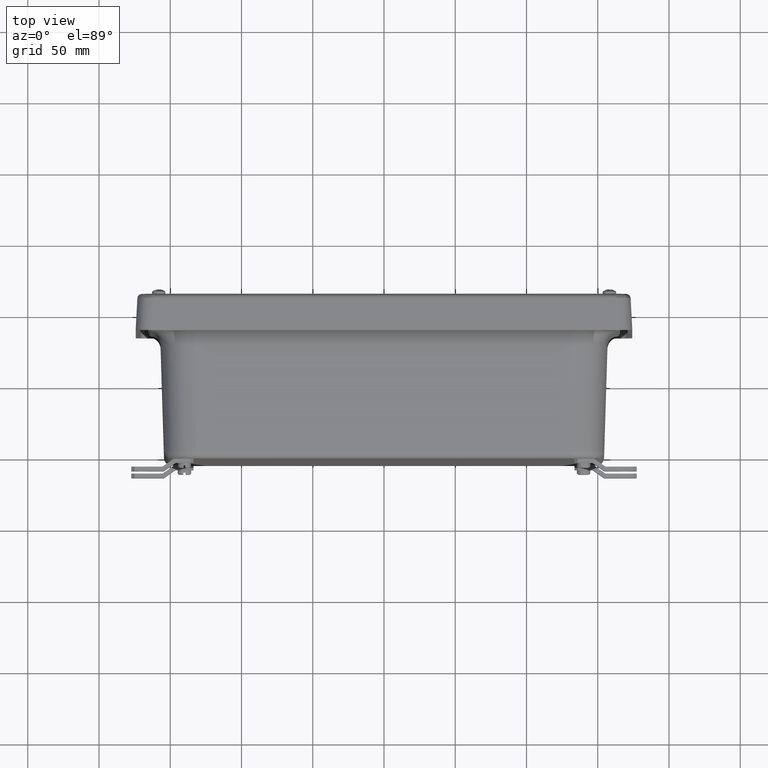
[diagram: clean part render]
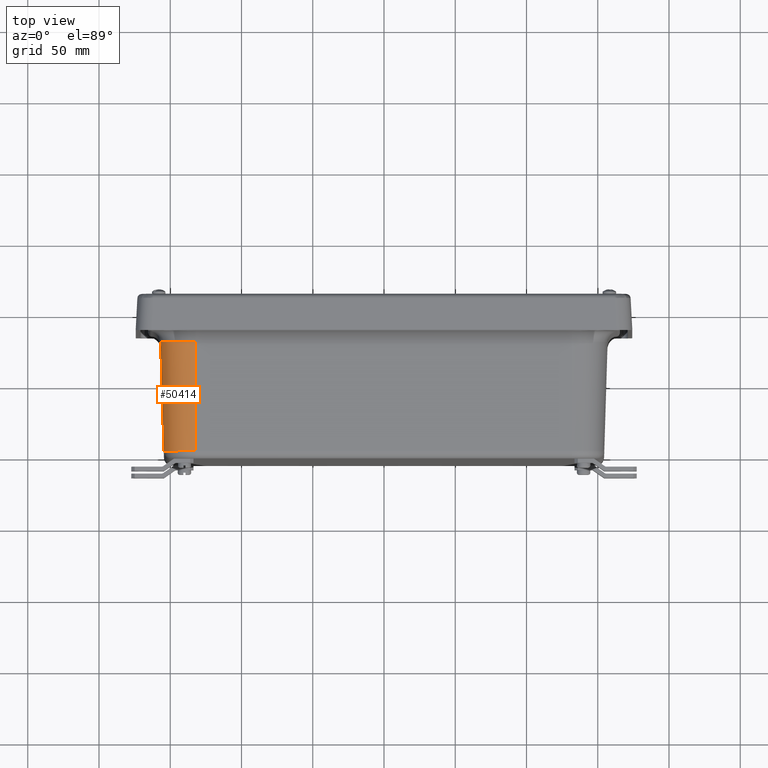
[diagram: same view with one face highlighted and labeled with its STEP entity id]
A machine part, top view. The second image highlights one B-rep face of the part: STEP entity #50414.
In plain terms, the highlighted conical surface has half-angle 1.75 deg.
Its self-contained STEP definition (entity closure, byte-faithful):
#1798 = CARTESIAN_POINT ( 'NONE',  ( -5.198999999999999800, -3.912687934392951900, 5.198999999999999800 ) ) ;
#2619 = CARTESIAN_POINT ( 'NONE',  ( -5.198999999999999800, -0.8964719838785354400, 6.171610303672742300 ) ) ;
#4912 = CARTESIAN_POINT ( 'NONE',  ( -5.198999999999999800, -0.8964719838785353300, 5.198999999999999800 ) ) ;
#5246 = LINE ( 'NONE', #57478, #71189 ) ;
#6045 = ORIENTED_EDGE ( 'NONE', *, *, #19269, .F. ) ;
#7020 = FACE_OUTER_BOUND ( 'NONE', #29618, .T. ) ;
#7923 = DIRECTION ( 'NONE',  ( 0.0000000000000000000, 1.000000000000000000, 0.0000000000000000000 ) ) ;
#11029 = VERTEX_POINT ( 'NONE', #76137 ) ;
#13997 = ORIENTED_EDGE ( 'NONE', *, *, #45966, .T. ) ;
#15022 = CIRCLE ( 'NONE', #68703, 0.8804565716792475100 ) ;
#15454 = VERTEX_POINT ( 'NONE', #74407 ) ;
#17716 = DIRECTION ( 'NONE',  ( 0.0000000000000000000, 0.0000000000000000000, 1.000000000000000000 ) ) ;
#18611 = CIRCLE ( 'NONE', #65824, 0.9726103036727427000 ) ;
#19269 = EDGE_CURVE ( 'NONE', #45676, #15454, #5246, .T. ) ;
#27732 = DIRECTION ( 'NONE',  ( 0.0000000000000000000, 0.0000000000000000000, -1.000000000000000000 ) ) ;
#28395 = LINE ( 'NONE', #55631, #57345 ) ;
#29618 = EDGE_LOOP ( 'NONE', ( #6045, #81470, #82011, #13997 ) ) ;
#33077 = EDGE_CURVE ( 'NONE', #11029, #74691, #28395, .T. ) ;
#41914 = CONICAL_SURFACE ( 'NONE', #81600, 1.000000000000000200, 0.03054326190990083400 ) ;
#42450 = DIRECTION ( 'NONE',  ( 0.0000000000000000000, 0.9995335908367130000, 0.03053851320982272500 ) ) ;
#45676 = VERTEX_POINT ( 'NONE', #59419 ) ;
#45966 = EDGE_CURVE ( 'NONE', #74691, #15454, #18611, .T. ) ;
#49579 = DIRECTION ( 'NONE',  ( -0.0000000000000000000, -1.000000000000000000, -0.0000000000000000000 ) ) ;
#50414 = ADVANCED_FACE ( 'NONE', ( #7020 ), #41914, .T. ) ;
#55631 = CARTESIAN_POINT ( 'NONE',  ( -5.198999999999999800, 0.0000000000000000000, 6.198999999999999800 ) ) ;
#57345 = VECTOR ( 'NONE', #42450, 39.37007874015748100 ) ;
#57478 = CARTESIAN_POINT ( 'NONE',  ( -6.198999999999999800, 0.0000000000000000000, 5.198999999999999800 ) ) ;
#59306 = DIRECTION ( 'NONE',  ( 0.0000000000000000000, 0.0000000000000000000, 1.000000000000000000 ) ) ;
#59419 = CARTESIAN_POINT ( 'NONE',  ( -6.079456571679248400, -3.912687934392951500, 5.198999999999999800 ) ) ;
#65824 = AXIS2_PLACEMENT_3D ( 'NONE', #4912, #49579, #17716 ) ;
#68703 = AXIS2_PLACEMENT_3D ( 'NONE', #1798, #78070, #27732 ) ;
#71018 = CARTESIAN_POINT ( 'NONE',  ( -5.198999999999999800, 0.0000000000000000000, 5.198999999999999800 ) ) ;
#71189 = VECTOR ( 'NONE', #71706, 39.37007874015748100 ) ;
#71706 = DIRECTION ( 'NONE',  ( -0.03053851320982272500, 0.9995335908367130000, 0.0000000000000000000 ) ) ;
#74407 = CARTESIAN_POINT ( 'NONE',  ( -6.171610303672742300, -0.8964719838785354400, 5.198999999999999800 ) ) ;
#74509 = EDGE_CURVE ( 'NONE', #45676, #11029, #15022, .T. ) ;
#74691 = VERTEX_POINT ( 'NONE', #2619 ) ;
#76137 = CARTESIAN_POINT ( 'NONE',  ( -5.198999999999999800, -3.912687934392951500, 6.079456571679248400 ) ) ;
#78070 = DIRECTION ( 'NONE',  ( -0.0000000000000000000, 1.000000000000000000, 0.0000000000000000000 ) ) ;
#81470 = ORIENTED_EDGE ( 'NONE', *, *, #74509, .T. ) ;
#81600 = AXIS2_PLACEMENT_3D ( 'NONE', #71018, #7923, #59306 ) ;
#82011 = ORIENTED_EDGE ( 'NONE', *, *, #33077, .T. ) ;